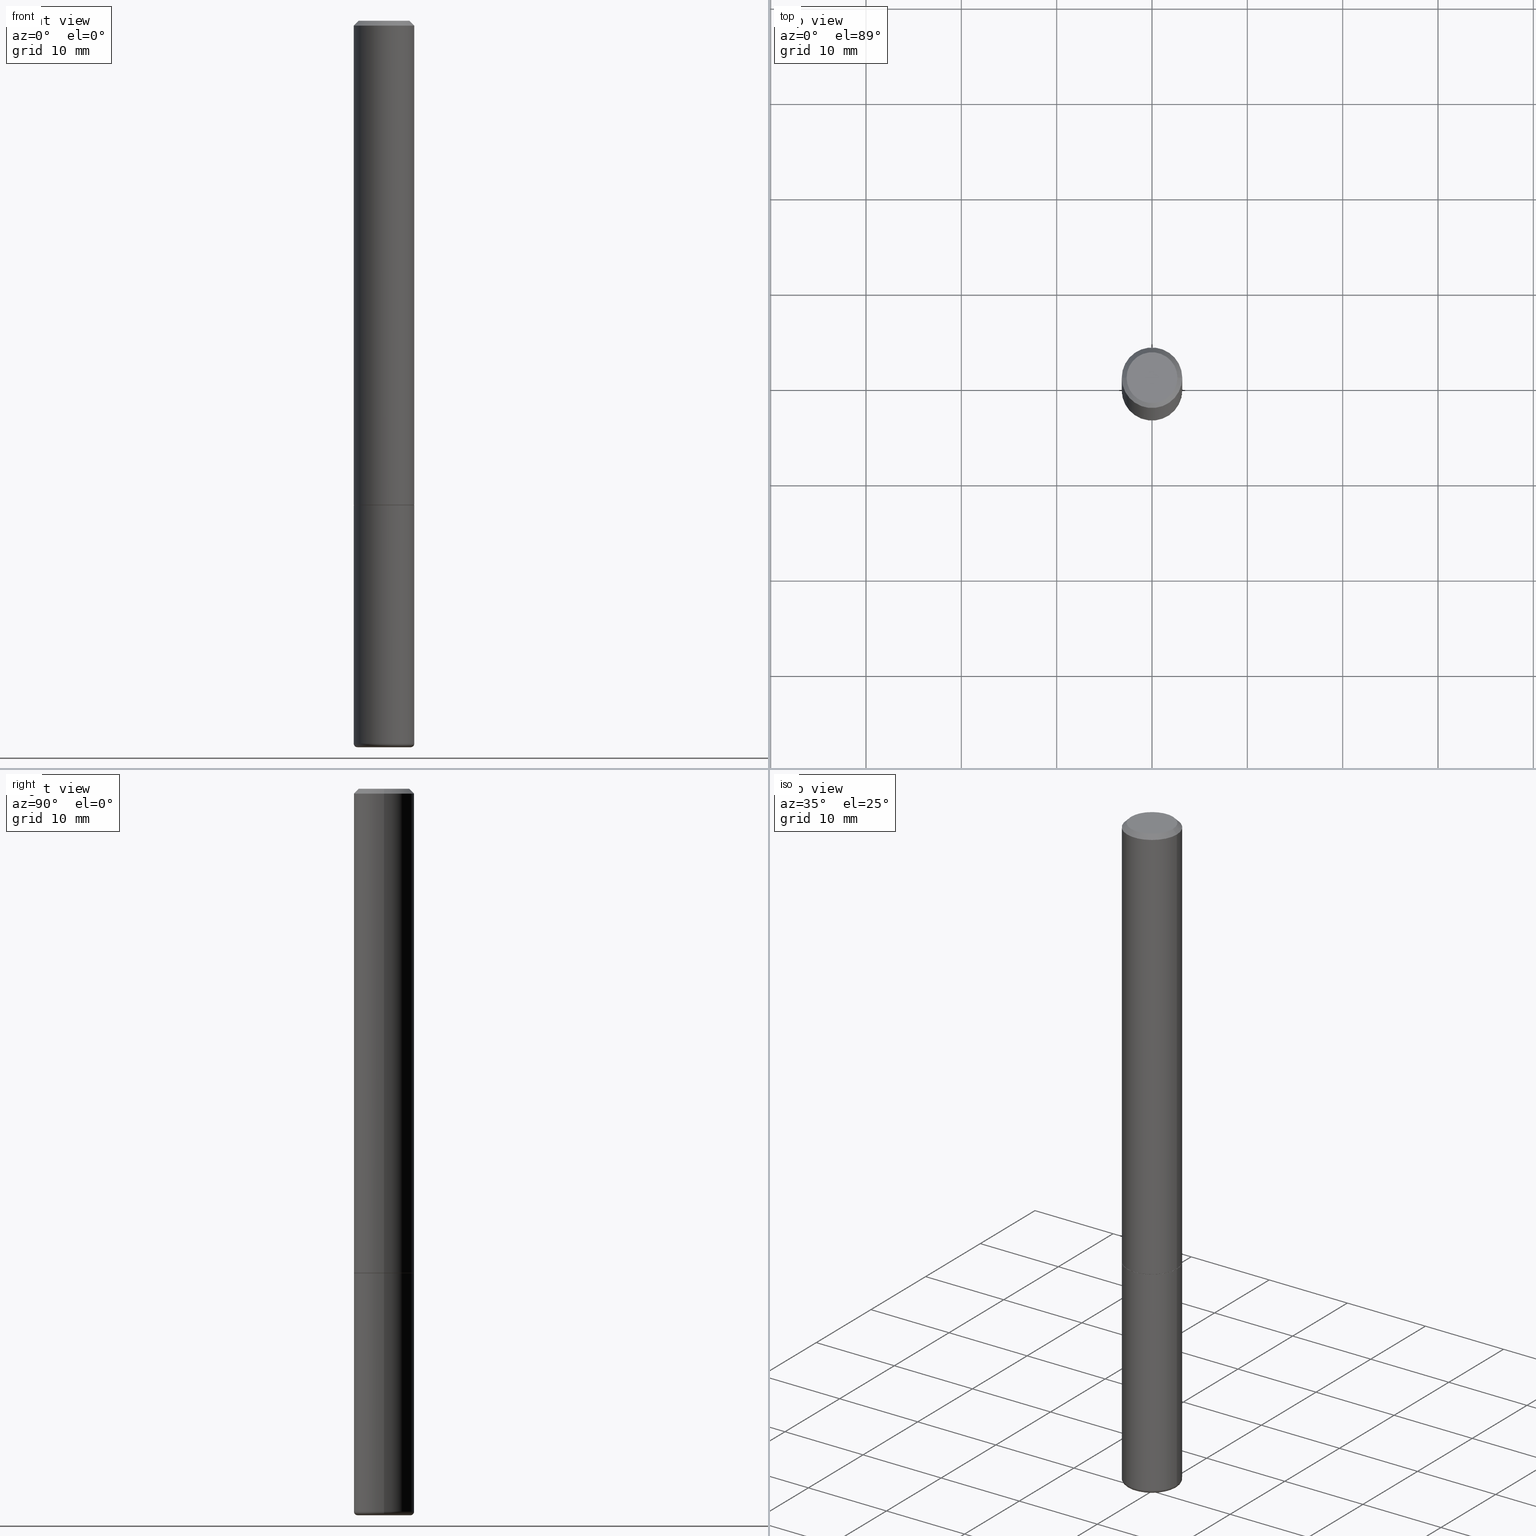
[diagram: canonical four-view strip — front | top / right | iso, engineering-drawing reading convention]
A machine part, canonical four-view strip (front | top / right | iso — engineering-drawing reading convention). The complete STEP part file that produces these views, byte-faithful:
ISO-10303-21;
HEADER;
FILE_DESCRIPTION (( 'STEP AP203' ),
    '1' );
FILE_NAME ('35582.STEP',
    '2022-11-02T20:22:18',
    ( '' ),
    ( '' ),
    'SwSTEP 2.0',
    'SolidWorks 2022',
    '' );
FILE_SCHEMA (( 'CONFIG_CONTROL_DESIGN' ));
ENDSEC;

DATA;
#1 = DIRECTION ( 'NONE',  ( -1.000000000000000000, 6.982962677686271444E-15, 0.000000000000000000 ) ) ;
#2 = DIRECTION ( 'NONE',  ( 1.000000000000000000, -6.982962677686207546E-15, 0.000000000000000000 ) ) ;
#3 = VECTOR ( 'NONE', #234, 39.37007874015748854 ) ;
#4 = DIRECTION ( 'NONE',  ( -2.445468806185136597E-29, 3.491481338843145583E-15, 1.000000000000000000 ) ) ;
#5 = DIRECTION ( 'NONE',  ( 2.445468806185136597E-29, -3.491481338843145583E-15, -1.000000000000000000 ) ) ;
#6 = CARTESIAN_POINT ( 'NONE',  ( 0.1250000000000000278, -8.728703347107836346E-16, 6.095220969744921142E-30 ) ) ;
#7 = FACE_OUTER_BOUND ( 'NONE', #334, .T. ) ;
#8 = EDGE_CURVE ( 'NONE', #199, #257, #407, .T. ) ;
#9 = PERSON_AND_ORGANIZATION ( #347, #354 ) ;
#10 = ORIENTED_EDGE ( 'NONE', *, *, #450, .T. ) ;
#11 = ADVANCED_FACE ( 'NONE', ( #240 ), #325, .T. ) ;
#12 = DIRECTION ( 'NONE',  ( 1.000000000000000000, -6.982962677686271444E-15, 0.000000000000000000 ) ) ;
#13 = VECTOR ( 'NONE', #492, 39.37007874015748143 ) ;
#14 = ORIENTED_EDGE ( 'NONE', *, *, #415, .F. ) ;
#15 = DIRECTION ( 'NONE',  ( -2.445468806185136597E-29, 3.491481338843145583E-15, 1.000000000000000000 ) ) ;
#16 = EDGE_LOOP ( 'NONE', ( #72, #26, #176, #394 ) ) ;
#17 = AXIS2_PLACEMENT_3D ( 'NONE', #200, #264, #411 ) ;
#18 = DIRECTION ( 'NONE',  ( 2.445468806185136597E-29, -3.491481338843145583E-15, -1.000000000000000000 ) ) ;
#19 = CIRCLE ( 'NONE', #35, 0.1098691019675246683 ) ;
#20 = CARTESIAN_POINT ( 'NONE',  ( 0.1098691019675246683, -1.124165585499956661E-14, -2.999999999999999556 ) ) ;
#21 = CC_DESIGN_DATE_AND_TIME_ASSIGNMENT ( #84, #117, ( #83 ) ) ;
#22 = DIRECTION ( 'NONE',  ( -1.000000000000000000, 6.982962677686267499E-15, 0.000000000000000000 ) ) ;
#23 = DIRECTION ( 'NONE',  ( 1.000000000000000000, 0.000000000000000000, 0.000000000000000000 ) ) ;
#24 = ORIENTED_EDGE ( 'NONE', *, *, #96, .T. ) ;
#25 = VECTOR ( 'NONE', #88, 39.37007874015748854 ) ;
#26 = ORIENTED_EDGE ( 'NONE', *, *, #253, .T. ) ;
#27 = EDGE_CURVE ( 'NONE', #206, #42, #359, .T. ) ;
#28 = COORDINATED_UNIVERSAL_TIME_OFFSET ( 5, 0, .BEHIND. ) ;
#29 = ORIENTED_EDGE ( 'NONE', *, *, #398, .F. ) ;
#30 = CARTESIAN_POINT ( 'NONE',  ( 4.890937612370296805E-31, -6.982962677686323656E-17, -0.02000000000000009409 ) ) ;
#31 = ORIENTED_EDGE ( 'NONE', *, *, #114, .T. ) ;
#32 = DIRECTION ( 'NONE',  ( 2.445468806185136597E-29, -3.491481338843145583E-15, -1.000000000000000000 ) ) ;
#33 = AXIS2_PLACEMENT_3D ( 'NONE', #288, #212, #173 ) ;
#34 = ORIENTED_EDGE ( 'NONE', *, *, #265, .F. ) ;
#35 = AXIS2_PLACEMENT_3D ( 'NONE', #358, #15, #438 ) ;
#36 = UNCERTAINTY_MEASURE_WITH_UNIT (LENGTH_MEASURE( 1.000000000000000082E-05 ), #70, 'distance_accuracy_value', 'NONE');
#37 = DIRECTION ( 'NONE',  ( -1.000000000000000000, 6.982962677686271444E-15, 0.000000000000000000 ) ) ;
#38 = APPROVAL_ROLE ( '' ) ;
#39 = DIRECTION ( 'NONE',  ( -1.000000000000000000, 6.982962677686265922E-15, -4.876176775795935793E-29 ) ) ;
#40 = LINE ( 'NONE', #343, #3 ) ;
#41 = CALENDAR_DATE ( 2022, 2, 11 ) ;
#42 = VERTEX_POINT ( 'NONE', #278 ) ;
#43 = DIRECTION ( 'NONE',  ( 0.7071067811865232589, -2.468850131082003836E-15, 0.7071067811865715536 ) ) ;
#44 = DIRECTION ( 'NONE',  ( -2.445468806185136877E-29, 3.491481338843145188E-15, 1.000000000000000000 ) ) ;
#45 = CARTESIAN_POINT ( 'NONE',  ( 0.1250000000000000278, -7.855833012397075293E-15, -2.000000000000000444 ) ) ;
#46 = AXIS2_PLACEMENT_3D ( 'NONE', #456, #462, #420 ) ;
#47 = LINE ( 'NONE', #49, #25 ) ;
#48 = CARTESIAN_POINT ( 'NONE',  ( 0.000000000000000000, 0.000000000000000000, 0.000000000000000000 ) ) ;
#49 = CARTESIAN_POINT ( 'NONE',  ( 0.1098691019675246683, -1.122820077059459480E-14, -2.999999999999999556 ) ) ;
#50 = CYLINDRICAL_SURFACE ( 'NONE', #449, 0.1250000000000000278 ) ;
#51 = DIRECTION ( 'NONE',  ( -1.000000000000000000, 7.105427357601058657E-15, 0.000000000000000000 ) ) ;
#52 = AXIS2_PLACEMENT_3D ( 'NONE', #182, #139, #402 ) ;
#53 = CONICAL_SURFACE ( 'NONE', #108, 0.1098691019675246683, 1.562069680534970972 ) ;
#54 = ADVANCED_FACE ( 'NONE', ( #356 ), #50, .T. ) ;
#55 = FACE_OUTER_BOUND ( 'NONE', #16, .T. ) ;
#56 = CIRCLE ( 'NONE', #387, 0.1049999999999992190 ) ;
#57 = LOCAL_TIME ( 16, 22, 18.00000000000000000, #242 ) ;
#58 = EDGE_CURVE ( 'NONE', #224, #74, #207, .T. ) ;
#59 = DIRECTION ( 'NONE',  ( -2.445468806185136597E-29, 3.491481338843145583E-15, 1.000000000000000000 ) ) ;
#60 = APPROVAL_DATE_TIME ( #408, #237 ) ;
#61 = ORIENTED_EDGE ( 'NONE', *, *, #466, .F. ) ;
#62 = CARTESIAN_POINT ( 'NONE',  ( -0.1250000000000000278, 8.881784197001254296E-16, -6.148668862818634329E-30 ) ) ;
#63 = PLANE ( 'NONE',  #315 ) ;
#64 = ADVANCED_FACE ( 'NONE', ( #201 ), #430, .T. ) ;
#65 = ORIENTED_EDGE ( 'NONE', *, *, #324, .F. ) ;
#66 = AXIS2_PLACEMENT_3D ( 'NONE', #298, #445, #331 ) ;
#67 = PERSON_AND_ORGANIZATION ( #347, #354 ) ;
#68 = EDGE_LOOP ( 'NONE', ( #65, #392, #491, #34 ) ) ;
#69 = FACE_OUTER_BOUND ( 'NONE', #484, .T. ) ;
#70 =( CONVERSION_BASED_UNIT ( 'INCH', #400 ) LENGTH_UNIT ( ) NAMED_UNIT ( #431 ) );
#71 = PRODUCT_DEFINITION_SHAPE ( 'NONE', 'NONE',  #83 ) ;
#72 = ORIENTED_EDGE ( 'NONE', *, *, #187, .F. ) ;
#73 = FACE_OUTER_BOUND ( 'NONE', #79, .T. ) ;
#74 = VERTEX_POINT ( 'NONE', #45 ) ;
#75 = DIRECTION ( 'NONE',  ( 2.445468806185136597E-29, -3.491481338843145583E-15, -1.000000000000000000 ) ) ;
#76 = EDGE_CURVE ( 'NONE', #101, #344, #196, .T. ) ;
#77 = AXIS2_PLACEMENT_3D ( 'NONE', #457, #231, #372 ) ;
#78 = PERSON_AND_ORGANIZATION ( #347, #354 ) ;
#79 = EDGE_LOOP ( 'NONE', ( #230, #423, #447 ) ) ;
#80 = LINE ( 'NONE', #383, #452 ) ;
#81 = PERSON_AND_ORGANIZATION_ROLE ( 'design_supplier' ) ;
#82 = DIRECTION ( 'NONE',  ( 2.445468806185136597E-29, -3.491481338843145583E-15, -1.000000000000000000 ) ) ;
#83 = PRODUCT_DEFINITION ( 'UNKNOWN', '', #198, #342 ) ;
#84 = DATE_AND_TIME ( #425, #274 ) ;
#85 = ORIENTED_EDGE ( 'NONE', *, *, #265, .T. ) ;
#86 = APPLICATION_CONTEXT ( 'configuration controlled 3d designs of mechanical parts and assemblies' ) ;
#87 = AXIS2_PLACEMENT_3D ( 'NONE', #103, #404, #439 ) ;
#88 = DIRECTION ( 'NONE',  ( 0.9999619230641716427, -6.890705306874684122E-15, -0.008726535498327935014 ) ) ;
#89 = CARTESIAN_POINT ( 'NONE',  ( 0.1100000000000002087, -1.119019968516594196E-14, -2.985000571154037274 ) ) ;
#90 = CARTESIAN_POINT ( 'NONE',  ( 1.148236555768741665E-45, -1.639377487418492057E-31, -4.695363739110452099E-17 ) ) ;
#91 = DIRECTION ( 'NONE',  ( 7.105427357601001859E-15, 1.000000000000000000, -3.491481338843145583E-15 ) ) ;
#92 = CC_DESIGN_PERSON_AND_ORGANIZATION_ASSIGNMENT ( #412, #226, ( #83 ) ) ;
#93 = AXIS2_PLACEMENT_3D ( 'NONE', #244, #124, #313 ) ;
#94 = FACE_OUTER_BOUND ( 'NONE', #374, .T. ) ;
#95 = CARTESIAN_POINT ( 'NONE',  ( 4.890937612370296805E-31, -6.982962677686323656E-17, -0.02000000000000009409 ) ) ;
#96 = EDGE_CURVE ( 'NONE', #304, #224, #469, .T. ) ;
#97 = DIRECTION ( 'NONE',  ( -1.000000000000000000, 6.982962677686266711E-15, 0.000000000000000000 ) ) ;
#98 = CONICAL_SURFACE ( 'NONE', #419, 0.1240000000000000269, 0.7853981633974141952 ) ;
#99 = COORDINATED_UNIVERSAL_TIME_OFFSET ( 5, 0, .BEHIND. ) ;
#100 = EDGE_LOOP ( 'NONE', ( #259, #269, #416, #446 ) ) ;
#101 = VERTEX_POINT ( 'NONE', #164 ) ;
#102 = DIRECTION ( 'NONE',  ( -2.445468806185136877E-29, 3.491481338843145188E-15, 1.000000000000000000 ) ) ;
#103 = CARTESIAN_POINT ( 'NONE',  ( 0.000000000000000000, 0.000000000000000000, 0.000000000000000000 ) ) ;
#104 = ORIENTED_EDGE ( 'NONE', *, *, #27, .F. ) ;
#105 = DIRECTION ( 'NONE',  ( -2.445468806185136597E-29, 3.491481338843145583E-15, 1.000000000000000000 ) ) ;
#106 = AXIS2_PLACEMENT_3D ( 'NONE', #285, #385, #172 ) ;
#107 = AXIS2_PLACEMENT_3D ( 'NONE', #220, #363, #185 ) ;
#108 = AXIS2_PLACEMENT_3D ( 'NONE', #292, #440, #97 ) ;
#109 = EDGE_LOOP ( 'NONE', ( #467, #10 ) ) ;
#110 = CARTESIAN_POINT ( 'NONE',  ( 0.000000000000000000, 0.000000000000000000, 0.000000000000000000 ) ) ;
#111 = ORIENTED_EDGE ( 'NONE', *, *, #184, .T. ) ;
#112 = EDGE_CURVE ( 'NONE', #426, #371, #250, .T. ) ;
#113 = DIRECTION ( 'NONE',  ( -1.000000000000000000, 6.982962677686265922E-15, -4.876176775795935793E-29 ) ) ;
#114 = EDGE_CURVE ( 'NONE', #410, #146, #320, .T. ) ;
#115 = LINE ( 'NONE', #279, #188 ) ;
#116 = CONICAL_SURFACE ( 'NONE', #245, 0.09653660196752467115, 1.535889741755009918 ) ;
#117 = DATE_TIME_ROLE ( 'creation_date' ) ;
#118 = VECTOR ( 'NONE', #102, 39.37007874015748143 ) ;
#119 = VERTEX_POINT ( 'NONE', #477 ) ;
#120 = CARTESIAN_POINT ( 'NONE',  ( -0.1240000000000000269, -6.096591230995545328E-15, -2.000000000000000444 ) ) ;
#121 = LINE ( 'NONE', #424, #13 ) ;
#122 = ADVANCED_FACE ( 'NONE', ( #142 ), #366, .T. ) ;
#123 = DIRECTION ( 'NONE',  ( 1.000000000000000000, -6.982962677686269077E-15, 0.000000000000000000 ) ) ;
#124 = DIRECTION ( 'NONE',  ( -2.445468806185136597E-29, 3.491481338843145583E-15, 1.000000000000000000 ) ) ;
#125 = ADVANCED_FACE ( 'NONE', ( #180 ), #63, .F. ) ;
#126 = ADVANCED_FACE ( 'NONE', ( #69 ), #353, .F. ) ;
#127 = DIRECTION ( 'NONE',  ( -2.445468806185136597E-29, 3.491481338843145583E-15, 1.000000000000000000 ) ) ;
#128 = MANIFOLD_SOLID_BREP ( 'Body-Move/Copy2[1]', #418 ) ;
#129 = APPROVAL_STATUS ( 'not_yet_approved' ) ;
#130 = ORIENTED_EDGE ( 'NONE', *, *, #324, .T. ) ;
#131 = CARTESIAN_POINT ( 'NONE',  ( -0.09653660196752467115, -9.799926290737131105E-15, -2.999883649035179900 ) ) ;
#132 = ORIENTED_EDGE ( 'NONE', *, *, #238, .F. ) ;
#133 = EDGE_CURVE ( 'NONE', #410, #42, #40, .T. ) ;
#134 = CC_DESIGN_PERSON_AND_ORGANIZATION_ASSIGNMENT ( #9, #81, ( #198 ) ) ;
#135 = CLOSED_SHELL ( 'NONE', ( #474, #302, #122, #64, #471, #281, #125, #153 ) ) ;
#136 = CIRCLE ( 'NONE', #77, 0.1250000000000000278 ) ;
#137 = CC_DESIGN_APPROVAL ( #213, ( #306 ) ) ;
#138 = DIRECTION ( 'NONE',  ( -2.445468806185136597E-29, 3.491481338843145583E-15, 1.000000000000000000 ) ) ;
#139 = DIRECTION ( 'NONE',  ( -2.445468806185136597E-29, 3.491481338843145583E-15, 1.000000000000000000 ) ) ;
#140 = APPROVAL_ROLE ( '' ) ;
#141 = ORIENTED_EDGE ( 'NONE', *, *, #421, .F. ) ;
#142 = FACE_OUTER_BOUND ( 'NONE', #194, .T. ) ;
#143 = CARTESIAN_POINT ( 'NONE',  ( -0.1249999999999992090, 8.030407079339147158E-16, -0.02000000000000009409 ) ) ;
#144 = PERSON_AND_ORGANIZATION ( #347, #354 ) ;
#145 = CC_DESIGN_PERSON_AND_ORGANIZATION_ASSIGNMENT ( #378, #162, ( #198 ) ) ;
#146 = VERTEX_POINT ( 'NONE', #414 ) ;
#147 = FACE_OUTER_BOUND ( 'NONE', #401, .T. ) ;
#148 = ORIENTED_EDGE ( 'NONE', *, *, #27, .T. ) ;
#149 = EDGE_LOOP ( 'NONE', ( #413, #31, #486, #341 ) ) ;
#150 = CARTESIAN_POINT ( 'NONE',  ( -0.1250000000000000278, -7.814339814453245950E-15, -2.985000571154037274 ) ) ;
#151 = AXIS2_PLACEMENT_3D ( 'NONE', #428, #434, #12 ) ;
#152 = AXIS2_PLACEMENT_3D ( 'NONE', #256, #399, #362 ) ;
#153 = ADVANCED_FACE ( 'NONE', ( #417 ), #272, .F. ) ;
#154 = VERTEX_POINT ( 'NONE', #228 ) ;
#155 = FACE_OUTER_BOUND ( 'NONE', #149, .T. ) ;
#156 = APPROVAL_ROLE ( '' ) ;
#157 = CARTESIAN_POINT ( 'NONE',  ( 0.1250000000000000278, -7.852341531058232286E-15, -1.999000000000000110 ) ) ;
#158 = CARTESIAN_POINT ( 'NONE',  ( 7.299725783202013722E-29, -1.042207379062045199E-14, -2.985000571154037274 ) ) ;
#159 = EDGE_CURVE ( 'NONE', #304, #199, #197, .T. ) ;
#160 = CARTESIAN_POINT ( 'NONE',  ( 7.332110811570524037E-16, 0.1049999999999992190, -3.900823592740798305E-16 ) ) ;
#161 = CONICAL_SURFACE ( 'NONE', #470, 0.1098691019675246683, 1.562069680534970972 ) ;
#162 = PERSON_AND_ORGANIZATION_ROLE ( 'creator' ) ;
#163 = LOCAL_TIME ( 16, 22, 18.00000000000000000, #169 ) ;
#164 = CARTESIAN_POINT ( 'NONE',  ( -0.09653660196752467115, -9.799926290737131105E-15, -2.999883649035179900 ) ) ;
#165 = DIRECTION ( 'NONE',  ( 1.000000000000000000, -6.982962677686259611E-15, 4.883557194083110098E-29 ) ) ;
#166 = DIRECTION ( 'NONE',  ( -1.000000000000000000, 6.982962677686266711E-15, 0.000000000000000000 ) ) ;
#167 = DATE_AND_TIME ( #41, #247 ) ;
#168 = EDGE_LOOP ( 'NONE', ( #455, #132, #189, #390 ) ) ;
#169 = COORDINATED_UNIVERSAL_TIME_OFFSET ( 5, 0, .BEHIND. ) ;
#170 = CARTESIAN_POINT ( 'NONE',  ( -0.1100000000000002087, -9.640476781284339513E-15, -2.985000571154037274 ) ) ;
#171 = CIRCLE ( 'NONE', #93, 0.1250000000000000278 ) ;
#172 = DIRECTION ( 'NONE',  ( 1.000000000000000000, -6.982962677686259611E-15, 4.883557194083110098E-29 ) ) ;
#173 = DIRECTION ( 'NONE',  ( 1.000000000000000000, -6.982962677686266711E-15, 4.876176775795935793E-29 ) ) ;
#174 = CARTESIAN_POINT ( 'NONE',  ( 4.890937612370273754E-29, -6.982962677686291954E-15, -2.000000000000000444 ) ) ;
#175 = VECTOR ( 'NONE', #463, 39.37007874015748143 ) ;
#176 = ORIENTED_EDGE ( 'NONE', *, *, #380, .T. ) ;
#177 = CC_DESIGN_PERSON_AND_ORGANIZATION_ASSIGNMENT ( #144, #308, ( #336 ) ) ;
#178 = APPROVAL_PERSON_ORGANIZATION ( #67, #237, #140 ) ;
#179 = DIRECTION ( 'NONE',  ( 0.7071067811865465735, -7.319954787623252890E-15, -0.7071067811865484609 ) ) ;
#180 = FACE_OUTER_BOUND ( 'NONE', #233, .T. ) ;
#181 = ADVANCED_BREP_SHAPE_REPRESENTATION ( '35582', ( #128, #289, #388 ), #461 ) ;
#182 = CARTESIAN_POINT ( 'NONE',  ( 7.336121885900372411E-29, -1.047403777930701143E-14, -2.999883649035179900 ) ) ;
#183 = DIRECTION ( 'NONE',  ( 0.000000000000000000, 0.000000000000000000, 1.000000000000000000 ) ) ;
#184 = EDGE_CURVE ( 'NONE', #227, #344, #121, .T. ) ;
#185 = DIRECTION ( 'NONE',  ( 1.000000000000000000, -6.982962677686267499E-15, 0.000000000000000000 ) ) ;
#186 = EDGE_LOOP ( 'NONE', ( #333, #443, #267, #221 ) ) ;
#187 = EDGE_CURVE ( 'NONE', #42, #300, #80, .T. ) ;
#188 = VECTOR ( 'NONE', #271, 39.37007874015748143 ) ;
#189 = ORIENTED_EDGE ( 'NONE', *, *, #421, .T. ) ;
#190 = CARTESIAN_POINT ( 'NONE',  ( 4.890937612370273754E-29, -6.982962677686291954E-15, -2.000000000000000444 ) ) ;
#191 =( NAMED_UNIT ( * ) SI_UNIT ( $, .STERADIAN. ) SOLID_ANGLE_UNIT ( ) );
#192 = ORIENTED_EDGE ( 'NONE', *, *, #294, .F. ) ;
#193 = CARTESIAN_POINT ( 'NONE',  ( 4.888492143564088712E-29, -6.979471196347448158E-15, -1.999000000000000110 ) ) ;
#194 = EDGE_LOOP ( 'NONE', ( #309, #453, #329, #141 ) ) ;
#195 = CARTESIAN_POINT ( 'NONE',  ( 0.1250000000000000278, -1.129494412533123533E-14, -2.985000571154037274 ) ) ;
#196 = CIRCLE ( 'NONE', #151, 0.09653660196752467115 ) ;
#197 = CIRCLE ( 'NONE', #46, 0.1098691019675246683 ) ;
#198 = PRODUCT_DEFINITION_FORMATION_WITH_SPECIFIED_SOURCE ( 'ANY', '', #336, .NOT_KNOWN. ) ;
#199 = VERTEX_POINT ( 'NONE', #203 ) ;
#200 = CARTESIAN_POINT ( 'NONE',  ( 1.148236555768741665E-45, -1.639377487418492057E-31, -4.695363739110452099E-17 ) ) ;
#201 = FACE_OUTER_BOUND ( 'NONE', #168, .T. ) ;
#202 = DIRECTION ( 'NONE',  ( -0.7071067811865465735, 2.468850131082246805E-15, -0.7071067811865484609 ) ) ;
#203 = CARTESIAN_POINT ( 'NONE',  ( -0.1098691019675246683, -9.613836232287328946E-15, -2.999999999999999556 ) ) ;
#204 = VECTOR ( 'NONE', #208, 39.37007874015748854 ) ;
#205 = CONICAL_SURFACE ( 'NONE', #339, 0.1240000000000000269, 0.7853981633974141952 ) ;
#206 = VERTEX_POINT ( 'NONE', #157 ) ;
#207 = LINE ( 'NONE', #6, #175 ) ;
#208 = DIRECTION ( 'NONE',  ( -0.9999619230641716427, 6.952228252019333330E-15, -0.008726535498327935014 ) ) ;
#209 = ADVANCED_FACE ( 'NONE', ( #73 ), #116, .F. ) ;
#210 = ORIENTED_EDGE ( 'NONE', *, *, #444, .F. ) ;
#211 = ADVANCED_FACE ( 'NONE', ( #345 ), #161, .F. ) ;
#212 = DIRECTION ( 'NONE',  ( -2.445468806185136597E-29, 3.491481338843145583E-15, 1.000000000000000000 ) ) ;
#213 = APPROVAL ( #275, 'UNSPECIFIED' ) ;
#214 = DIRECTION ( 'NONE',  ( -2.445468806185136597E-29, 3.491481338843145583E-15, 1.000000000000000000 ) ) ;
#215 = CARTESIAN_POINT ( 'NONE',  ( 0.1249999999999992090, -9.273918764982992215E-16, -0.02000000000000009409 ) ) ;
#216 = AXIS2_PLACEMENT_3D ( 'NONE', #318, #82, #348 ) ;
#217 = APPROVAL_PERSON_ORGANIZATION ( #246, #213, #38 ) ;
#218 = CARTESIAN_POINT ( 'NONE',  ( 4.890937612370273754E-29, -6.982962677686291954E-15, -2.000000000000000444 ) ) ;
#219 = EDGE_CURVE ( 'NONE', #300, #371, #330, .T. ) ;
#220 = CARTESIAN_POINT ( 'NONE',  ( 4.890937612370296805E-31, -6.982962677686323656E-17, -0.02000000000000009409 ) ) ;
#221 = ORIENTED_EDGE ( 'NONE', *, *, #159, .F. ) ;
#222 = CARTESIAN_POINT ( 'NONE',  ( 0.09653660196752467115, -1.113632694381688201E-14, -2.999883649035179900 ) ) ;
#223 = APPROVAL ( #129, 'UNSPECIFIED' ) ;
#224 = VERTEX_POINT ( 'NONE', #195 ) ;
#225 = AXIS2_PLACEMENT_3D ( 'NONE', #193, #335, #488 ) ;
#226 = PERSON_AND_ORGANIZATION_ROLE ( 'creator' ) ;
#227 = VERTEX_POINT ( 'NONE', #312 ) ;
#228 = CARTESIAN_POINT ( 'NONE',  ( -0.1250000000000000278, -7.814339814453245950E-15, -2.000000000000000444 ) ) ;
#229 = PRODUCT_RELATED_PRODUCT_CATEGORY ( 'detail', '', ( #336 ) ) ;
#230 = ORIENTED_EDGE ( 'NONE', *, *, #184, .F. ) ;
#231 = DIRECTION ( 'NONE',  ( -2.445468806185136597E-29, 3.491481338843145583E-15, 1.000000000000000000 ) ) ;
#232 = SECURITY_CLASSIFICATION_LEVEL ( 'unclassified' ) ;
#233 = EDGE_LOOP ( 'NONE', ( #287, #405 ) ) ;
#234 = DIRECTION ( 'NONE',  ( -0.7071067811865232589, 7.493145998870265808E-15, 0.7071067811865715536 ) ) ;
#235 = AXIS2_PLACEMENT_3D ( 'NONE', #89, #276, #2 ) ;
#236 = AXIS2_PLACEMENT_3D ( 'NONE', #277, #75, #1 ) ;
#237 = APPROVAL ( #332, 'UNSPECIFIED' ) ;
#238 = EDGE_CURVE ( 'NONE', #119, #426, #396, .T. ) ;
#239 = DATE_TIME_ROLE ( 'classification_date' ) ;
#240 = FACE_OUTER_BOUND ( 'NONE', #100, .T. ) ;
#241 = LINE ( 'NONE', #391, #204 ) ;
#242 = COORDINATED_UNIVERSAL_TIME_OFFSET ( 5, 0, .BEHIND. ) ;
#243 = EDGE_LOOP ( 'NONE', ( #148, #337, #192, #261 ) ) ;
#244 = CARTESIAN_POINT ( 'NONE',  ( 7.299725783202013722E-29, -1.042207379062045199E-14, -2.985000571154037274 ) ) ;
#245 = AXIS2_PLACEMENT_3D ( 'NONE', #370, #32, #37 ) ;
#246 = PERSON_AND_ORGANIZATION ( #347, #354 ) ;
#247 = LOCAL_TIME ( 16, 22, 18.00000000000000000, #433 ) ;
#248 = ORIENTED_EDGE ( 'NONE', *, *, #293, .T. ) ;
#249 = DIRECTION ( 'NONE',  ( 2.438088387897960049E-29, -3.491481338843145188E-15, -1.000000000000000000 ) ) ;
#250 = LINE ( 'NONE', #215, #490 ) ;
#251 = DIRECTION ( 'NONE',  ( -2.445468806185136597E-29, 3.491481338843145583E-15, 1.000000000000000000 ) ) ;
#252 = ORIENTED_EDGE ( 'NONE', *, *, #58, .F. ) ;
#253 = EDGE_CURVE ( 'NONE', #42, #206, #437, .T. ) ;
#254 = AXIS2_PLACEMENT_3D ( 'NONE', #160, #377, #113 ) ;
#255 = CYLINDRICAL_SURFACE ( 'NONE', #33, 0.1249999999999996253 ) ;
#256 = CARTESIAN_POINT ( 'NONE',  ( 7.299725783202013722E-29, -1.042207379062045199E-14, -2.985000571154037274 ) ) ;
#257 = VERTEX_POINT ( 'NONE', #150 ) ;
#258 = CYLINDRICAL_SURFACE ( 'NONE', #87, 0.1249999999999996253 ) ;
#259 = ORIENTED_EDGE ( 'NONE', *, *, #159, .T. ) ;
#260 = ADVANCED_FACE ( 'NONE', ( #307 ), #454, .T. ) ;
#261 = ORIENTED_EDGE ( 'NONE', *, *, #380, .F. ) ;
#262 = AXIS2_PLACEMENT_3D ( 'NONE', #170, #91, #51 ) ;
#263 = VECTOR ( 'NONE', #202, 39.37007874015748143 ) ;
#264 = DIRECTION ( 'NONE',  ( -2.445468806185136597E-29, 3.491481338843145583E-15, 1.000000000000000000 ) ) ;
#265 = EDGE_CURVE ( 'NONE', #154, #74, #136, .T. ) ;
#266 =( NAMED_UNIT ( * ) PLANE_ANGLE_UNIT ( ) SI_UNIT ( $, .RADIAN. ) );
#267 = ORIENTED_EDGE ( 'NONE', *, *, #415, .T. ) ;
#268 = DIRECTION ( 'NONE',  ( -2.445468806185136597E-29, 3.491481338843145583E-15, 1.000000000000000000 ) ) ;
#269 = ORIENTED_EDGE ( 'NONE', *, *, #8, .T. ) ;
#270 = DIRECTION ( 'NONE',  ( 1.000000000000000000, -6.982962677686267499E-15, 0.000000000000000000 ) ) ;
#271 = DIRECTION ( 'NONE',  ( -2.445468806185136877E-29, 3.491481338843145188E-15, 1.000000000000000000 ) ) ;
#272 = PLANE ( 'NONE',  #254 ) ;
#273 = CIRCLE ( 'NONE', #66, 0.1240000000000000269 ) ;
#274 = LOCAL_TIME ( 16, 22, 18.00000000000000000, #28 ) ;
#275 = APPROVAL_STATUS ( 'not_yet_approved' ) ;
#276 = DIRECTION ( 'NONE',  ( -6.982962677686266711E-15, -1.000000000000000000, 3.491481338843145583E-15 ) ) ;
#277 = CARTESIAN_POINT ( 'NONE',  ( 7.336121885900372411E-29, -1.047403777930701143E-14, -2.999883649035179900 ) ) ;
#278 = CARTESIAN_POINT ( 'NONE',  ( -0.1250000000000000278, -2.636471991862018663E-15, -1.999000000000000110 ) ) ;
#279 = CARTESIAN_POINT ( 'NONE',  ( 0.1249999999999996253, -8.728703347107806764E-16, 6.095220969744901524E-30 ) ) ;
#280 = APPROVAL_DATE_TIME ( #167, #223 ) ;
#281 = ADVANCED_FACE ( 'NONE', ( #155 ), #98, .T. ) ;
#282 = DIRECTION ( 'NONE',  ( -2.445468806185136597E-29, 3.491481338843145583E-15, 1.000000000000000000 ) ) ;
#283 = VECTOR ( 'NONE', #286, 39.37007874015748143 ) ;
#284 = CALENDAR_DATE ( 2022, 2, 11 ) ;
#285 = CARTESIAN_POINT ( 'NONE',  ( 7.299725783202013722E-29, -1.042207379062045199E-14, -2.985000571154037274 ) ) ;
#286 = DIRECTION ( 'NONE',  ( -0.9993908270190957621, 6.856857904024556470E-15, -0.03489949670250108021 ) ) ;
#287 = ORIENTED_EDGE ( 'NONE', *, *, #293, .F. ) ;
#288 = CARTESIAN_POINT ( 'NONE',  ( 0.000000000000000000, 0.000000000000000000, 0.000000000000000000 ) ) ;
#289 = MANIFOLD_SOLID_BREP ( 'Body-Move/Copy2[2]', #135 ) ;
#290 = AXIS2_PLACEMENT_3D ( 'NONE', #110, #268, #340 ) ;
#291 = CC_DESIGN_APPROVAL ( #237, ( #83 ) ) ;
#292 = CARTESIAN_POINT ( 'NONE',  ( 7.336406418555408669E-29, -1.047444401652943478E-14, -2.999999999999999556 ) ) ;
#293 = EDGE_CURVE ( 'NONE', #146, #410, #273, .T. ) ;
#294 = EDGE_CURVE ( 'NONE', #371, #300, #476, .T. ) ;
#295 = ORIENTED_EDGE ( 'NONE', *, *, #395, .F. ) ;
#296 = AXIS2_PLACEMENT_3D ( 'NONE', #95, #18, #22 ) ;
#297 = APPROVAL_PERSON_ORGANIZATION ( #78, #223, #156 ) ;
#298 = CARTESIAN_POINT ( 'NONE',  ( 4.890937612370273754E-29, -6.982962677686291954E-15, -2.000000000000000444 ) ) ;
#299 = DIRECTION ( 'NONE',  ( 1.000000000000000000, -6.982962677686269077E-15, 0.000000000000000000 ) ) ;
#300 = VERTEX_POINT ( 'NONE', #143 ) ;
#301 = DIRECTION ( 'NONE',  ( -2.438088387897960049E-29, 3.491481338843145188E-15, 1.000000000000000000 ) ) ;
#302 = ADVANCED_FACE ( 'NONE', ( #483 ), #258, .T. ) ;
#303 = EDGE_CURVE ( 'NONE', #224, #257, #346, .T. ) ;
#304 = VERTEX_POINT ( 'NONE', #20 ) ;
#305 = CIRCLE ( 'NONE', #52, 0.09653660196752467115 ) ;
#306 = SECURITY_CLASSIFICATION ( '', '', #232 ) ;
#307 = FACE_OUTER_BOUND ( 'NONE', #68, .T. ) ;
#308 = PERSON_AND_ORGANIZATION_ROLE ( 'design_owner' ) ;
#309 = ORIENTED_EDGE ( 'NONE', *, *, #450, .F. ) ;
#310 = CARTESIAN_POINT ( 'NONE',  ( 4.890937612370273754E-29, -6.982962677686291954E-15, -2.000000000000000444 ) ) ;
#311 = EDGE_CURVE ( 'NONE', #344, #101, #305, .T. ) ;
#312 = CARTESIAN_POINT ( 'NONE',  ( 7.328228073267898184E-29, -1.046176604627832574E-14, -2.996512516610355448 ) ) ;
#313 = DIRECTION ( 'NONE',  ( 1.000000000000000000, -6.982962677686261189E-15, 0.000000000000000000 ) ) ;
#314 = DIRECTION ( 'NONE',  ( 1.000000000000000000, -6.982962677686265922E-15, 4.876176775795935793E-29 ) ) ;
#315 = AXIS2_PLACEMENT_3D ( 'NONE', #190, #301, #314 ) ;
#316 = ORIENTED_EDGE ( 'NONE', *, *, #8, .F. ) ;
#317 = APPROVAL_DATE_TIME ( #379, #213 ) ;
#318 = CARTESIAN_POINT ( 'NONE',  ( 4.890937612370296805E-31, -6.982962677686323656E-17, -0.02000000000000009409 ) ) ;
#319 = CARTESIAN_POINT ( 'NONE',  ( 0.1049999999999992190, -8.238720831321523396E-16, -4.695363739109907908E-17 ) ) ;
#320 = CIRCLE ( 'NONE', #441, 0.1240000000000000269 ) ;
#321 = LOCAL_TIME ( 16, 22, 18.00000000000000000, #99 ) ;
#322 = ORIENTED_EDGE ( 'NONE', *, *, #466, .T. ) ;
#323 = DIRECTION ( 'NONE',  ( 1.000000000000000000, -6.982962677686269077E-15, 0.000000000000000000 ) ) ;
#324 = EDGE_CURVE ( 'NONE', #257, #154, #482, .T. ) ;
#325 = TOROIDAL_SURFACE ( 'NONE', #106, 0.1100000000000002087, 0.01500000000000012608 ) ;
#326 = DIRECTION ( 'NONE',  ( 1.000000000000000000, -6.982962677686269077E-15, 0.000000000000000000 ) ) ;
#327 = DIRECTION ( 'NONE',  ( 1.000000000000000000, -6.982962677686269077E-15, 0.000000000000000000 ) ) ;
#328 = MECHANICAL_CONTEXT ( 'NONE', #406, 'mechanical' ) ;
#329 = ORIENTED_EDGE ( 'NONE', *, *, #294, .T. ) ;
#330 = CIRCLE ( 'NONE', #480, 0.1249999999999992090 ) ;
#331 = DIRECTION ( 'NONE',  ( 1.000000000000000000, -6.982962677686269077E-15, 0.000000000000000000 ) ) ;
#332 = APPROVAL_STATUS ( 'not_yet_approved' ) ;
#333 = ORIENTED_EDGE ( 'NONE', *, *, #403, .F. ) ;
#334 = EDGE_LOOP ( 'NONE', ( #316, #472, #24, #29 ) ) ;
#335 = DIRECTION ( 'NONE',  ( -2.445468806185136597E-29, 3.491481338843145583E-15, 1.000000000000000000 ) ) ;
#336 = PRODUCT ( '35582', '35582', '', ( #328 ) ) ;
#337 = ORIENTED_EDGE ( 'NONE', *, *, #187, .T. ) ;
#338 = AXIS2_PLACEMENT_3D ( 'NONE', #473, #357, #323 ) ;
#339 = AXIS2_PLACEMENT_3D ( 'NONE', #174, #138, #326 ) ;
#340 = DIRECTION ( 'NONE',  ( 1.000000000000000000, -6.982962677686267499E-15, 4.876176775795935793E-29 ) ) ;
#341 = ORIENTED_EDGE ( 'NONE', *, *, #253, .F. ) ;
#342 = DESIGN_CONTEXT ( 'detailed design', #86, 'design' ) ;
#343 = CARTESIAN_POINT ( 'NONE',  ( -0.1240000000000000269, -6.101889685343766941E-15, -2.000000000000000444 ) ) ;
#344 = VERTEX_POINT ( 'NONE', #222 ) ;
#345 = FACE_OUTER_BOUND ( 'NONE', #436, .T. ) ;
#346 = CIRCLE ( 'NONE', #152, 0.1250000000000000278 ) ;
#347 = PERSON ( 'UNSPECIFIED', 'UNSPECIFIED', 'UNSPECIFIED', ('UNSPECIFIED'), ('UNSPECIFIED'), ('UNSPECIFIED') ) ;
#348 = DIRECTION ( 'NONE',  ( -1.000000000000000000, 6.982962677686267499E-15, 0.000000000000000000 ) ) ;
#349 = CARTESIAN_POINT ( 'NONE',  ( 8.728703347108323468E-16, 0.1249999999999930472, -2.000000000000000888 ) ) ;
#350 = CARTESIAN_POINT ( 'NONE',  ( 4.888492143564088712E-29, -6.979471196347448158E-15, -1.999000000000000110 ) ) ;
#351 = CARTESIAN_POINT ( 'NONE',  ( -0.1249999999999992090, 8.030407079339147158E-16, -0.02000000000000009409 ) ) ;
#352 = ORIENTED_EDGE ( 'NONE', *, *, #475, .F. ) ;
#353 = CONICAL_SURFACE ( 'NONE', #236, 0.09653660196752467115, 1.535889741755009918 ) ;
#354 = ORGANIZATION ( 'UNSPECIFIED', 'UNSPECIFIED', '' ) ;
#355 = ADVANCED_FACE ( 'NONE', ( #147 ), #465, .F. ) ;
#356 = FACE_OUTER_BOUND ( 'NONE', #367, .T. ) ;
#357 = DIRECTION ( 'NONE',  ( -2.445468806185136597E-29, 3.491481338843145583E-15, 1.000000000000000000 ) ) ;
#358 = CARTESIAN_POINT ( 'NONE',  ( 7.336406418555408669E-29, -1.047444401652943478E-14, -2.999999999999999556 ) ) ;
#359 = CIRCLE ( 'NONE', #489, 0.1250000000000000278 ) ;
#360 = AXIS2_PLACEMENT_3D ( 'NONE', #158, #4, #165 ) ;
#361 = ADVANCED_FACE ( 'NONE', ( #7 ), #375, .T. ) ;
#362 = DIRECTION ( 'NONE',  ( 1.000000000000000000, -6.982962677686261189E-15, 0.000000000000000000 ) ) ;
#363 = DIRECTION ( 'NONE',  ( -2.445468806185136597E-29, 3.491481338843145583E-15, 1.000000000000000000 ) ) ;
#364 =( LENGTH_UNIT ( ) NAMED_UNIT ( * ) SI_UNIT ( $, .METRE. ) );
#365 = ORIENTED_EDGE ( 'NONE', *, *, #76, .F. ) ;
#366 = CONICAL_SURFACE ( 'NONE', #296, 0.1249999999999992090, 0.7853981633974469467 ) ;
#367 = EDGE_LOOP ( 'NONE', ( #464, #130, #61, #252 ) ) ;
#368 = CARTESIAN_POINT ( 'NONE',  ( 0.000000000000000000, 0.000000000000000000, 0.000000000000000000 ) ) ;
#369 = ORIENTED_EDGE ( 'NONE', *, *, #133, .T. ) ;
#370 = CARTESIAN_POINT ( 'NONE',  ( 7.336121885900372411E-29, -1.047403777930701143E-14, -2.999883649035179900 ) ) ;
#371 = VERTEX_POINT ( 'NONE', #429 ) ;
#372 = DIRECTION ( 'NONE',  ( 1.000000000000000000, -6.982962677686269077E-15, 0.000000000000000000 ) ) ;
#373 = DATE_AND_TIME ( #427, #163 ) ;
#374 = EDGE_LOOP ( 'NONE', ( #248, #369, #104, #295 ) ) ;
#375 = TOROIDAL_SURFACE ( 'NONE', #360, 0.1100000000000002087, 0.01500000000000012608 ) ;
#376 = CC_DESIGN_APPROVAL ( #223, ( #198 ) ) ;
#377 = DIRECTION ( 'NONE',  ( 2.438088387897960049E-29, -3.491481338843145188E-15, -1.000000000000000000 ) ) ;
#378 = PERSON_AND_ORGANIZATION ( #347, #354 ) ;
#379 = DATE_AND_TIME ( #284, #57 ) ;
#380 = EDGE_CURVE ( 'NONE', #206, #371, #115, .T. ) ;
#381 = ORIENTED_EDGE ( 'NONE', *, *, #403, .T. ) ;
#382 = LINE ( 'NONE', #351, #263 ) ;
#383 = CARTESIAN_POINT ( 'NONE',  ( -0.1249999999999996253, 8.881784197001225699E-16, -6.148668862818613310E-30 ) ) ;
#384 = PERSON_AND_ORGANIZATION_ROLE ( 'classification_officer' ) ;
#385 = DIRECTION ( 'NONE',  ( -2.445468806185136597E-29, 3.491481338843145583E-15, 1.000000000000000000 ) ) ;
#386 = LINE ( 'NONE', #435, #460 ) ;
#387 = AXIS2_PLACEMENT_3D ( 'NONE', #90, #251, #393 ) ;
#388 = AXIS2_PLACEMENT_3D ( 'NONE', #368, #183, #23 ) ;
#389 = SHAPE_DEFINITION_REPRESENTATION ( #71, #181 ) ;
#390 = ORIENTED_EDGE ( 'NONE', *, *, #219, .T. ) ;
#391 = CARTESIAN_POINT ( 'NONE',  ( -0.1098691019675246683, -9.707232178059302942E-15, -2.999999999999999556 ) ) ;
#392 = ORIENTED_EDGE ( 'NONE', *, *, #398, .T. ) ;
#393 = DIRECTION ( 'NONE',  ( 1.000000000000000000, -6.982962677686267499E-15, 4.874400871621274649E-29 ) ) ;
#394 = ORIENTED_EDGE ( 'NONE', *, *, #219, .F. ) ;
#395 = EDGE_CURVE ( 'NONE', #146, #206, #386, .T. ) ;
#396 = CIRCLE ( 'NONE', #17, 0.1049999999999992190 ) ;
#397 = CC_DESIGN_SECURITY_CLASSIFICATION ( #306, ( #198 ) ) ;
#398 = EDGE_CURVE ( 'NONE', #257, #224, #171, .T. ) ;
#399 = DIRECTION ( 'NONE',  ( -2.445468806185136597E-29, 3.491481338843145583E-15, 1.000000000000000000 ) ) ;
#400 = LENGTH_MEASURE_WITH_UNIT ( LENGTH_MEASURE( 0.02539999999999999897 ), #364 );
#401 = EDGE_LOOP ( 'NONE', ( #322, #85 ) ) ;
#402 = DIRECTION ( 'NONE',  ( 1.000000000000000000, -6.982962677686271444E-15, 0.000000000000000000 ) ) ;
#403 = EDGE_CURVE ( 'NONE', #344, #304, #47, .T. ) ;
#404 = DIRECTION ( 'NONE',  ( -2.445468806185136597E-29, 3.491481338843145583E-15, 1.000000000000000000 ) ) ;
#405 = ORIENTED_EDGE ( 'NONE', *, *, #114, .F. ) ;
#406 = APPLICATION_CONTEXT ( 'configuration controlled 3d designs of mechanical parts and assemblies' ) ;
#407 = CIRCLE ( 'NONE', #262, 0.01500000000000012955 ) ;
#408 = DATE_AND_TIME ( #451, #321 ) ;
#409 = AXIS2_PLACEMENT_3D ( 'NONE', #349, #249, #39 ) ;
#410 = VERTEX_POINT ( 'NONE', #120 ) ;
#411 = DIRECTION ( 'NONE',  ( 1.000000000000000000, -6.982962677686267499E-15, 4.874400871621274649E-29 ) ) ;
#412 = PERSON_AND_ORGANIZATION ( #347, #354 ) ;
#413 = ORIENTED_EDGE ( 'NONE', *, *, #133, .F. ) ;
#414 = CARTESIAN_POINT ( 'NONE',  ( 0.1240000000000000269, -7.848850049719389279E-15, -2.000000000000000444 ) ) ;
#415 = EDGE_CURVE ( 'NONE', #101, #199, #241, .T. ) ;
#416 = ORIENTED_EDGE ( 'NONE', *, *, #303, .F. ) ;
#417 = FACE_OUTER_BOUND ( 'NONE', #109, .T. ) ;
#418 = CLOSED_SHELL ( 'NONE', ( #211, #11, #54, #126, #209, #355, #260, #361, #479 ) ) ;
#419 = AXIS2_PLACEMENT_3D ( 'NONE', #310, #59, #327 ) ;
#420 = DIRECTION ( 'NONE',  ( 1.000000000000000000, -6.982962677686266711E-15, 0.000000000000000000 ) ) ;
#421 = EDGE_CURVE ( 'NONE', #119, #300, #382, .T. ) ;
#422 = PERSON_AND_ORGANIZATION ( #347, #354 ) ;
#423 = ORIENTED_EDGE ( 'NONE', *, *, #444, .T. ) ;
#424 = CARTESIAN_POINT ( 'NONE',  ( 0.09653660196752467115, -1.113632694381688201E-14, -2.999883649035179900 ) ) ;
#425 = CALENDAR_DATE ( 2022, 2, 11 ) ;
#426 = VERTEX_POINT ( 'NONE', #319 ) ;
#427 = CALENDAR_DATE ( 2022, 2, 11 ) ;
#428 = CARTESIAN_POINT ( 'NONE',  ( 7.336121885900372411E-29, -1.047403777930701143E-14, -2.999883649035179900 ) ) ;
#429 = CARTESIAN_POINT ( 'NONE',  ( 0.1249999999999992090, -9.273918764982992215E-16, -0.02000000000000009409 ) ) ;
#430 = CONICAL_SURFACE ( 'NONE', #216, 0.1249999999999992090, 0.7853981633974469467 ) ;
#431 = DIMENSIONAL_EXPONENTS ( 1.000000000000000000, 0.000000000000000000, 0.000000000000000000, 0.000000000000000000, 0.000000000000000000, 0.000000000000000000, 0.000000000000000000 ) ;
#432 = CIRCLE ( 'NONE', #338, 0.1250000000000000278 ) ;
#433 = COORDINATED_UNIVERSAL_TIME_OFFSET ( 5, 0, .BEHIND. ) ;
#434 = DIRECTION ( 'NONE',  ( -2.445468806185136597E-29, 3.491481338843145583E-15, 1.000000000000000000 ) ) ;
#435 = CARTESIAN_POINT ( 'NONE',  ( 0.1240000000000000269, -7.848850049719389279E-15, -2.000000000000000444 ) ) ;
#436 = EDGE_LOOP ( 'NONE', ( #481, #381, #352, #14 ) ) ;
#437 = CIRCLE ( 'NONE', #225, 0.1250000000000000278 ) ;
#438 = DIRECTION ( 'NONE',  ( 1.000000000000000000, -6.982962677686266711E-15, 0.000000000000000000 ) ) ;
#439 = DIRECTION ( 'NONE',  ( 1.000000000000000000, -6.982962677686266711E-15, 4.876176775795935793E-29 ) ) ;
#440 = DIRECTION ( 'NONE',  ( 2.445468806185136597E-29, -3.491481338843145583E-15, -1.000000000000000000 ) ) ;
#441 = AXIS2_PLACEMENT_3D ( 'NONE', #218, #214, #299 ) ;
#442 = APPLICATION_PROTOCOL_DEFINITION ( 'international standard', 'config_control_design', 1994, #406 ) ;
#443 = ORIENTED_EDGE ( 'NONE', *, *, #311, .T. ) ;
#444 = EDGE_CURVE ( 'NONE', #227, #101, #468, .T. ) ;
#445 = DIRECTION ( 'NONE',  ( -2.445468806185136597E-29, 3.491481338843145583E-15, 1.000000000000000000 ) ) ;
#446 = ORIENTED_EDGE ( 'NONE', *, *, #96, .F. ) ;
#447 = ORIENTED_EDGE ( 'NONE', *, *, #311, .F. ) ;
#448 = CARTESIAN_POINT ( 'NONE',  ( 7.336406418555408669E-29, -1.047444401652943478E-14, -2.999999999999999556 ) ) ;
#449 = AXIS2_PLACEMENT_3D ( 'NONE', #48, #282, #458 ) ;
#450 = EDGE_CURVE ( 'NONE', #426, #119, #56, .T. ) ;
#451 = CALENDAR_DATE ( 2022, 2, 11 ) ;
#452 = VECTOR ( 'NONE', #44, 39.37007874015748143 ) ;
#453 = ORIENTED_EDGE ( 'NONE', *, *, #112, .T. ) ;
#454 = CYLINDRICAL_SURFACE ( 'NONE', #290, 0.1250000000000000278 ) ;
#455 = ORIENTED_EDGE ( 'NONE', *, *, #112, .F. ) ;
#456 = CARTESIAN_POINT ( 'NONE',  ( 7.336406418555408669E-29, -1.047444401652943478E-14, -2.999999999999999556 ) ) ;
#457 = CARTESIAN_POINT ( 'NONE',  ( 4.890937612370273754E-29, -6.982962677686291954E-15, -2.000000000000000444 ) ) ;
#458 = DIRECTION ( 'NONE',  ( 1.000000000000000000, -6.982962677686267499E-15, 4.876176775795935793E-29 ) ) ;
#459 = CC_DESIGN_PERSON_AND_ORGANIZATION_ASSIGNMENT ( #422, #384, ( #306 ) ) ;
#460 = VECTOR ( 'NONE', #43, 39.37007874015748854 ) ;
#461 =( GEOMETRIC_REPRESENTATION_CONTEXT ( 3 ) GLOBAL_UNCERTAINTY_ASSIGNED_CONTEXT ( ( #36 ) ) GLOBAL_UNIT_ASSIGNED_CONTEXT ( ( #70, #266, #191 ) ) REPRESENTATION_CONTEXT ( 'NONE', 'WORKASPACE' ) );
#462 = DIRECTION ( 'NONE',  ( -2.445468806185136597E-29, 3.491481338843145583E-15, 1.000000000000000000 ) ) ;
#463 = DIRECTION ( 'NONE',  ( -2.445468806185136877E-29, 3.491481338843145188E-15, 1.000000000000000000 ) ) ;
#464 = ORIENTED_EDGE ( 'NONE', *, *, #303, .T. ) ;
#465 = PLANE ( 'NONE',  #409 ) ;
#466 = EDGE_CURVE ( 'NONE', #74, #154, #432, .T. ) ;
#467 = ORIENTED_EDGE ( 'NONE', *, *, #238, .T. ) ;
#468 = LINE ( 'NONE', #131, #283 ) ;
#469 = CIRCLE ( 'NONE', #235, 0.01500000000000012955 ) ;
#470 = AXIS2_PLACEMENT_3D ( 'NONE', #448, #5, #166 ) ;
#471 = ADVANCED_FACE ( 'NONE', ( #55 ), #255, .T. ) ;
#472 = ORIENTED_EDGE ( 'NONE', *, *, #475, .T. ) ;
#473 = CARTESIAN_POINT ( 'NONE',  ( 4.890937612370273754E-29, -6.982962677686291954E-15, -2.000000000000000444 ) ) ;
#474 = ADVANCED_FACE ( 'NONE', ( #94 ), #205, .T. ) ;
#475 = EDGE_CURVE ( 'NONE', #199, #304, #19, .T. ) ;
#476 = CIRCLE ( 'NONE', #107, 0.1249999999999992090 ) ;
#477 = CARTESIAN_POINT ( 'NONE',  ( -0.1049999999999992190, 7.681258945454834611E-16, -4.695363739110977184E-17 ) ) ;
#478 = FACE_OUTER_BOUND ( 'NONE', #186, .T. ) ;
#479 = ADVANCED_FACE ( 'NONE', ( #478 ), #53, .F. ) ;
#480 = AXIS2_PLACEMENT_3D ( 'NONE', #30, #105, #270 ) ;
#481 = ORIENTED_EDGE ( 'NONE', *, *, #76, .T. ) ;
#482 = LINE ( 'NONE', #62, #118 ) ;
#483 = FACE_OUTER_BOUND ( 'NONE', #243, .T. ) ;
#484 = EDGE_LOOP ( 'NONE', ( #210, #111, #365 ) ) ;
#485 = APPLICATION_PROTOCOL_DEFINITION ( 'international standard', 'config_control_design', 1994, #86 ) ;
#486 = ORIENTED_EDGE ( 'NONE', *, *, #395, .T. ) ;
#487 = CC_DESIGN_DATE_AND_TIME_ASSIGNMENT ( #373, #239, ( #306 ) ) ;
#488 = DIRECTION ( 'NONE',  ( 1.000000000000000000, -6.982962677686269077E-15, 0.000000000000000000 ) ) ;
#489 = AXIS2_PLACEMENT_3D ( 'NONE', #350, #127, #123 ) ;
#490 = VECTOR ( 'NONE', #179, 39.37007874015748143 ) ;
#491 = ORIENTED_EDGE ( 'NONE', *, *, #58, .T. ) ;
#492 = DIRECTION ( 'NONE',  ( 0.9993908270190957621, -6.978169709227541488E-15, -0.03489949670250108021 ) ) ;
ENDSEC;
END-ISO-10303-21;
